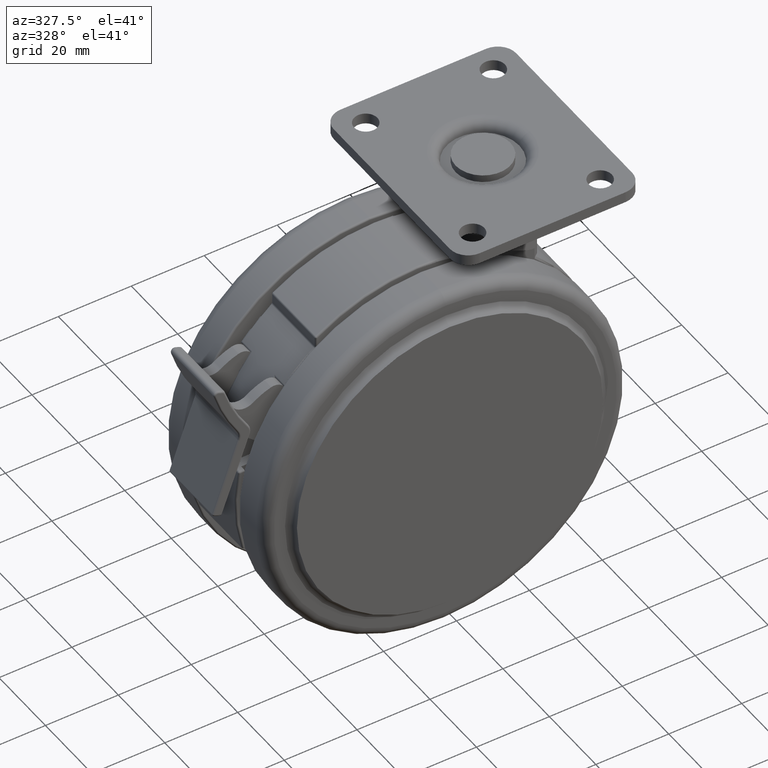
[diagram: clean part render]
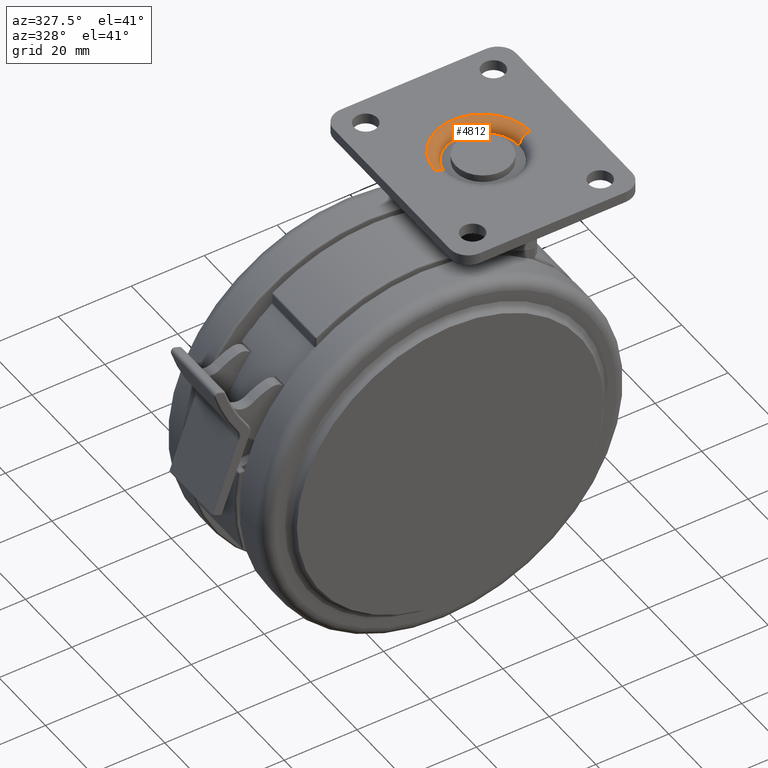
[diagram: same view with one face highlighted and labeled with its STEP entity id]
A machine part, auxiliary view. The second image highlights one B-rep face of the part: STEP entity #4812.
In plain terms, the highlighted toroidal blend (fillet) surface has major radius 13 mm and minor (blend) radius 3 mm.
Its self-contained STEP definition (entity closure, byte-faithful):
#124 = CARTESIAN_POINT ( 'NONE',  ( 13.00000000000000000, -2.682966859151243800E-014, 13.99999999999999800 ) ) ;
#222 = DIRECTION ( 'NONE',  ( -1.000000000000000000, 0.0000000000000000000, 0.0000000000000000000 ) ) ;
#348 = VERTEX_POINT ( 'NONE', #7495 ) ;
#585 = CIRCLE ( 'NONE', #1230, 3.000000000000000900 ) ;
#657 = CARTESIAN_POINT ( 'NONE',  ( 0.0000000000000000000, -2.842170943040399500E-014, 11.00000000000000000 ) ) ;
#1230 = AXIS2_PLACEMENT_3D ( 'NONE', #1855, #6503, #2525 ) ;
#1855 = CARTESIAN_POINT ( 'NONE',  ( 13.00000000000000000, -2.682966859151243800E-014, 11.00000000000000000 ) ) ;
#2046 = DIRECTION ( 'NONE',  ( -0.0000000000000000000, -0.0000000000000000000, 1.000000000000000000 ) ) ;
#2176 = CARTESIAN_POINT ( 'NONE',  ( -13.00000000000000000, -2.842170943040399500E-014, 11.00000000000000000 ) ) ;
#2433 = CIRCLE ( 'NONE', #2924, 13.00000000000000000 ) ;
#2525 = DIRECTION ( 'NONE',  ( -1.000000000000000000, -1.224646799147350200E-016, 0.0000000000000000000 ) ) ;
#2534 = CARTESIAN_POINT ( 'NONE',  ( 10.00000000000000000, -2.701336561138454100E-014, 11.00000000000000000 ) ) ;
#2638 = DIRECTION ( 'NONE',  ( -1.000000000000000000, 0.0000000000000000000, 0.0000000000000000000 ) ) ;
#2845 = DIRECTION ( 'NONE',  ( 0.0000000000000000000, 0.0000000000000000000, -1.000000000000000000 ) ) ;
#2924 = AXIS2_PLACEMENT_3D ( 'NONE', #8170, #4174, #222 ) ;
#3030 = EDGE_CURVE ( 'NONE', #6271, #8100, #2433, .T. ) ;
#3333 = ORIENTED_EDGE ( 'NONE', *, *, #3030, .F. ) ;
#4047 = AXIS2_PLACEMENT_3D ( 'NONE', #2176, #6835, #2845 ) ;
#4174 = DIRECTION ( 'NONE',  ( 0.0000000000000000000, 0.0000000000000000000, -1.000000000000000000 ) ) ;
#4393 = ORIENTED_EDGE ( 'NONE', *, *, #6853, .F. ) ;
#4679 = EDGE_CURVE ( 'NONE', #5746, #8100, #585, .T. ) ;
#4812 = ADVANCED_FACE ( 'NONE', ( #8165 ), #6604, .T. ) ;
#5082 = CIRCLE ( 'NONE', #4047, 2.999999999999999100 ) ;
#5284 = ORIENTED_EDGE ( 'NONE', *, *, #8032, .F. ) ;
#5669 = AXIS2_PLACEMENT_3D ( 'NONE', #657, #5961, #2638 ) ;
#5746 = VERTEX_POINT ( 'NONE', #2534 ) ;
#5961 = DIRECTION ( 'NONE',  ( 0.0000000000000000000, 0.0000000000000000000, -1.000000000000000000 ) ) ;
#6043 = CARTESIAN_POINT ( 'NONE',  ( 0.0000000000000000000, -2.842170943040399500E-014, 11.00000000000000000 ) ) ;
#6271 = VERTEX_POINT ( 'NONE', #8421 ) ;
#6412 = ORIENTED_EDGE ( 'NONE', *, *, #4679, .T. ) ;
#6503 = DIRECTION ( 'NONE',  ( -1.224646799147353200E-016, 1.000000000000000000, 0.0000000000000000000 ) ) ;
#6604 = TOROIDAL_SURFACE ( 'NONE', #5669, 13.00000000000000000, 3.000000000000000000 ) ;
#6701 = DIRECTION ( 'NONE',  ( -1.000000000000000000, 0.0000000000000000000, 0.0000000000000000000 ) ) ;
#6793 = AXIS2_PLACEMENT_3D ( 'NONE', #6043, #2046, #6701 ) ;
#6835 = DIRECTION ( 'NONE',  ( -0.0000000000000000000, -1.000000000000000000, -0.0000000000000000000 ) ) ;
#6853 = EDGE_CURVE ( 'NONE', #348, #6271, #5082, .T. ) ;
#6866 = CIRCLE ( 'NONE', #6793, 10.00000000000000000 ) ;
#7495 = CARTESIAN_POINT ( 'NONE',  ( -10.00000000000000000, -2.842170943040399500E-014, 11.00000000000000000 ) ) ;
#8032 = EDGE_CURVE ( 'NONE', #5746, #348, #6866, .T. ) ;
#8100 = VERTEX_POINT ( 'NONE', #124 ) ;
#8165 = FACE_OUTER_BOUND ( 'NONE', #8345, .T. ) ;
#8170 = CARTESIAN_POINT ( 'NONE',  ( 0.0000000000000000000, -2.842170943040399500E-014, 14.00000000000000000 ) ) ;
#8345 = EDGE_LOOP ( 'NONE', ( #5284, #6412, #3333, #4393 ) ) ;
#8421 = CARTESIAN_POINT ( 'NONE',  ( -13.00000000000000000, -2.842170943040399500E-014, 13.99999999999999800 ) ) ;